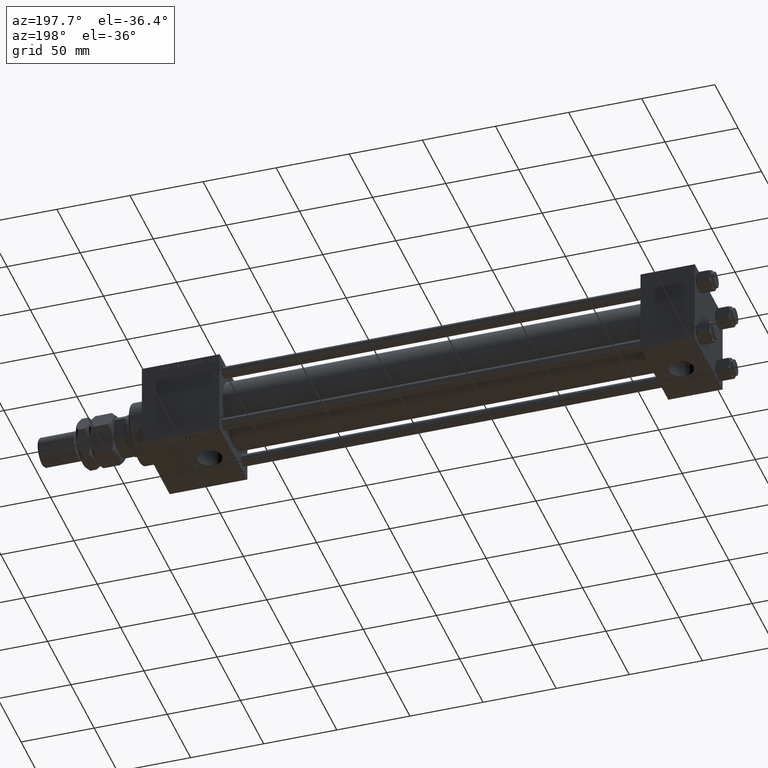
[diagram: clean part render]
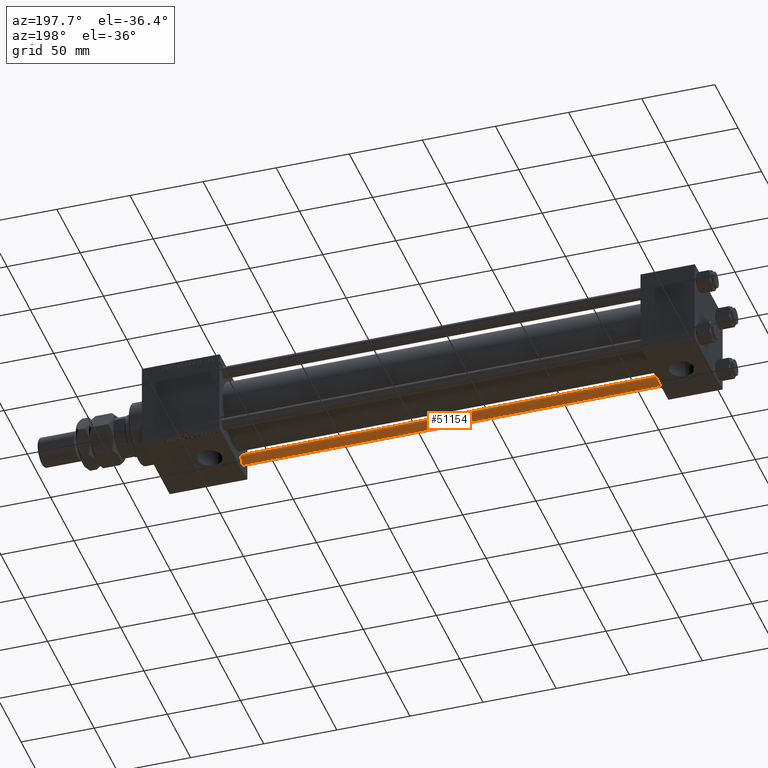
[diagram: same view with one face highlighted and labeled with its STEP entity id]
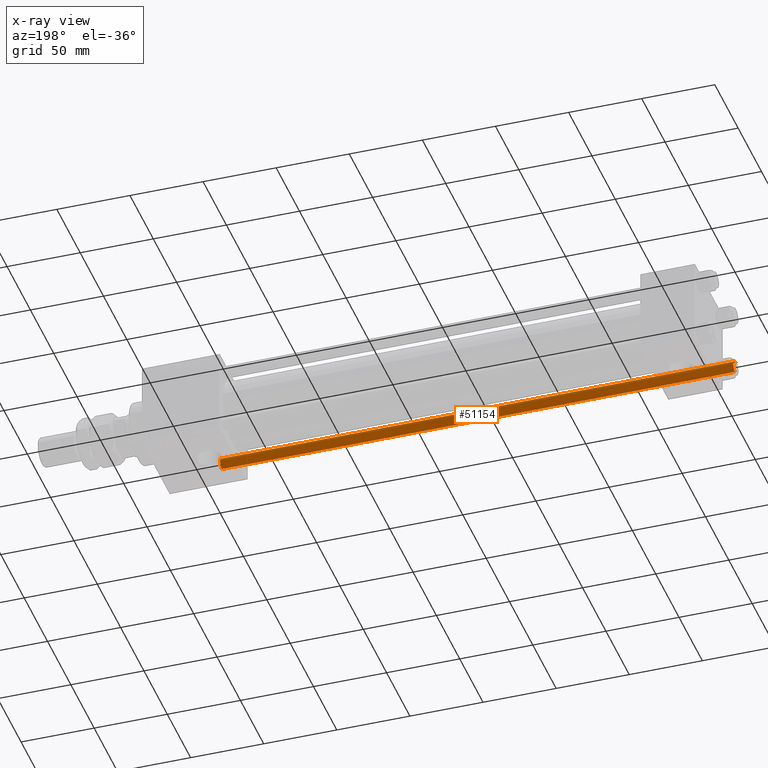
[diagram: x-ray of the same camera — body ghosted, the highlighted face saturated]
A machine part, auxiliary view. The second image highlights one B-rep face of the part: STEP entity #51154.
The next image is the same camera in x-ray: the body ghosted, the highlighted face saturated — about 0% of this face is hidden behind the body in this view.
In plain terms, the highlighted cylindrical surface (edge-blend (fillet) strip) has radius 4 mm, axis along (-1, -0, -0).
Its self-contained STEP definition (entity closure, byte-faithful):
#2239 = LINE ( 'NONE', #46937, #10759 ) ;
#3437 = CARTESIAN_POINT ( 'NONE',  ( -4.000000000000000000, 0.000000000000000000, 352.0000000000000000 ) ) ;
#5183 = ORIENTED_EDGE ( 'NONE', *, *, #12219, .T. ) ;
#7990 = CARTESIAN_POINT ( 'NONE',  ( 0.000000000000000000, 0.000000000000000000, 0.5000000000000004441 ) ) ;
#10363 = EDGE_CURVE ( 'NONE', #21443, #21527, #20468, .T. ) ;
#10508 = AXIS2_PLACEMENT_3D ( 'NONE', #25480, #17086, #33604 ) ;
#10626 = EDGE_CURVE ( 'NONE', #35724, #21443, #32974, .T. ) ;
#10660 = CYLINDRICAL_SURFACE ( 'NONE', #36047, 4.000000000000000000 ) ;
#10759 = VECTOR ( 'NONE', #18762, 1000.000000000000000 ) ;
#10837 = CARTESIAN_POINT ( 'NONE',  ( -4.000000000000000000, 0.000000000000000000, 351.5000000000000000 ) ) ;
#11516 = DIRECTION ( 'NONE',  ( 1.000000000000000000, 0.000000000000000000, 0.000000000000000000 ) ) ;
#12219 = EDGE_CURVE ( 'NONE', #21527, #17345, #39971, .T. ) ;
#14161 = DIRECTION ( 'NONE',  ( -1.000000000000000000, 0.000000000000000000, 0.000000000000000000 ) ) ;
#17086 = DIRECTION ( 'NONE',  ( 0.000000000000000000, 0.000000000000000000, -1.000000000000000000 ) ) ;
#17345 = VERTEX_POINT ( 'NONE', #26481 ) ;
#18117 = ORIENTED_EDGE ( 'NONE', *, *, #10363, .T. ) ;
#18503 = CARTESIAN_POINT ( 'NONE',  ( 0.000000000000000000, 0.000000000000000000, 352.0000000000000000 ) ) ;
#18762 = DIRECTION ( 'NONE',  ( -0.000000000000000000, -0.000000000000000000, -1.000000000000000000 ) ) ;
#20468 = LINE ( 'NONE', #3437, #38169 ) ;
#21443 = VERTEX_POINT ( 'NONE', #10837 ) ;
#21527 = VERTEX_POINT ( 'NONE', #41406 ) ;
#21852 = EDGE_CURVE ( 'NONE', #35724, #17345, #2239, .T. ) ;
#25480 = CARTESIAN_POINT ( 'NONE',  ( 0.000000000000000000, 0.000000000000000000, 351.5000000000000000 ) ) ;
#26481 = CARTESIAN_POINT ( 'NONE',  ( 4.000000000000000000, 4.898587196589412829E-16, 0.5000000000000004441 ) ) ;
#31901 = EDGE_LOOP ( 'NONE', ( #38489, #44112, #18117, #5183 ) ) ;
#32974 = CIRCLE ( 'NONE', #10508, 4.000000000000000000 ) ;
#33604 = DIRECTION ( 'NONE',  ( 1.000000000000000000, 0.000000000000000000, 0.000000000000000000 ) ) ;
#35724 = VERTEX_POINT ( 'NONE', #42375 ) ;
#36047 = AXIS2_PLACEMENT_3D ( 'NONE', #18503, #51287, #14161 ) ;
#38169 = VECTOR ( 'NONE', #44081, 1000.000000000000000 ) ;
#38489 = ORIENTED_EDGE ( 'NONE', *, *, #21852, .F. ) ;
#39616 = FACE_OUTER_BOUND ( 'NONE', #31901, .T. ) ;
#39971 = CIRCLE ( 'NONE', #44307, 4.000000000000000000 ) ;
#40480 = DIRECTION ( 'NONE',  ( -0.000000000000000000, -0.000000000000000000, 1.000000000000000000 ) ) ;
#41406 = CARTESIAN_POINT ( 'NONE',  ( -4.000000000000000000, 0.000000000000000000, 0.5000000000000004441 ) ) ;
#42375 = CARTESIAN_POINT ( 'NONE',  ( 4.000000000000000000, 4.898587196589412829E-16, 351.5000000000000000 ) ) ;
#44081 = DIRECTION ( 'NONE',  ( -0.000000000000000000, -0.000000000000000000, -1.000000000000000000 ) ) ;
#44112 = ORIENTED_EDGE ( 'NONE', *, *, #10626, .T. ) ;
#44307 = AXIS2_PLACEMENT_3D ( 'NONE', #7990, #40480, #11516 ) ;
#46937 = CARTESIAN_POINT ( 'NONE',  ( 4.000000000000000000, 4.898587196589412829E-16, 352.0000000000000000 ) ) ;
#51154 = ADVANCED_FACE ( 'NONE', ( #39616 ), #10660, .T. ) ;
#51287 = DIRECTION ( 'NONE',  ( -0.000000000000000000, -0.000000000000000000, -1.000000000000000000 ) ) ;